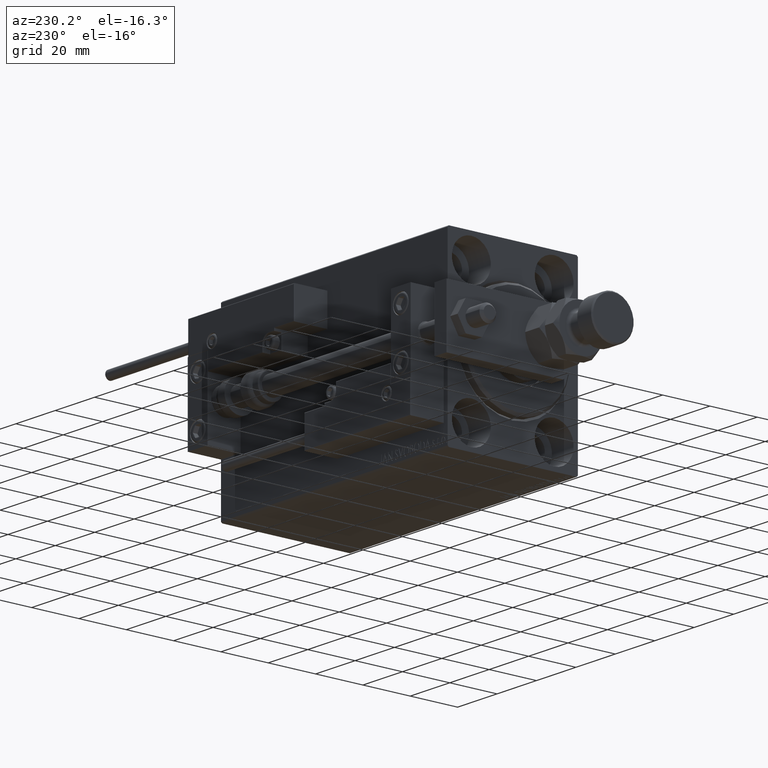
[diagram: clean part render]
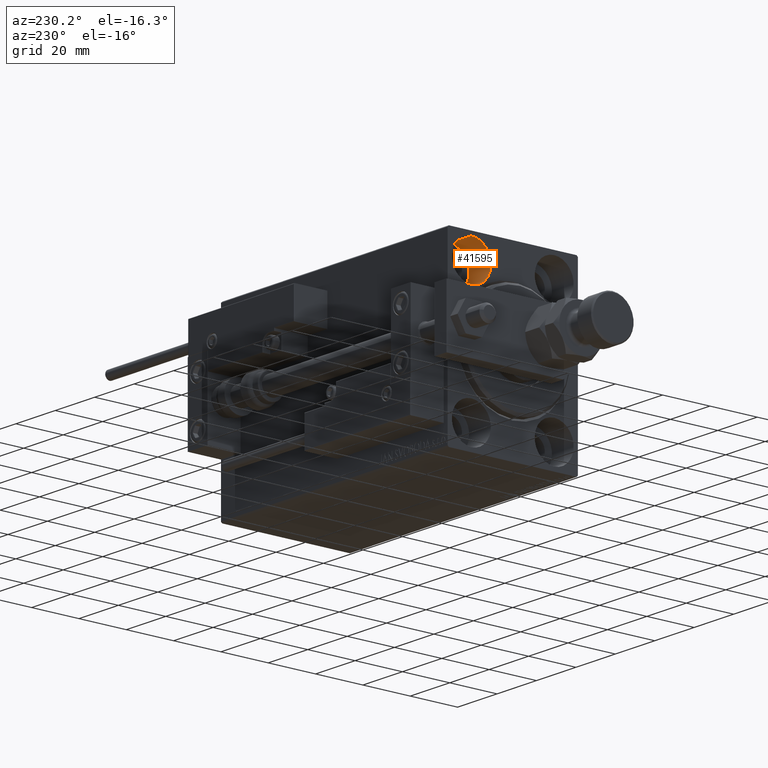
[diagram: same view with one face highlighted and labeled with its STEP entity id]
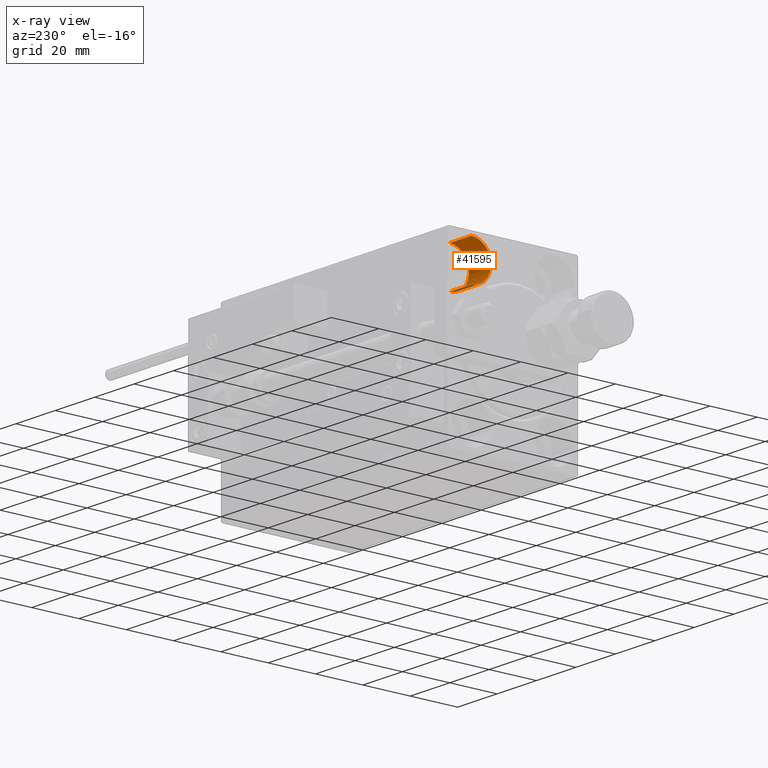
[diagram: x-ray of the same camera — body ghosted, the highlighted face saturated]
A machine part, auxiliary view. The second image highlights one B-rep face of the part: STEP entity #41595.
The next image is the same camera in x-ray: the body ghosted, the highlighted face saturated — about 5% of this face is hidden behind the body in this view.
In plain terms, the highlighted cylindrical surface (edge-blend (fillet) strip) has radius 8.25 mm, axis along (-1, -0, -0).
Its self-contained STEP definition (entity closure, byte-faithful):
#92 = VERTEX_POINT ( 'NONE', #14686 ) ;
#383 = DIRECTION ( 'NONE',  ( -1.000000000000000000, -0.000000000000000000, -0.000000000000000000 ) ) ;
#1646 = DIRECTION ( 'NONE',  ( -1.000000000000000000, 0.000000000000000000, 0.000000000000000000 ) ) ;
#5432 = CARTESIAN_POINT ( 'NONE',  ( 11.00000000000000000, 17.50000000000000355, 35.74999999999999289 ) ) ;
#9087 = DIRECTION ( 'NONE',  ( -1.000000000000000000, -0.000000000000000000, -0.000000000000000000 ) ) ;
#10274 = DIRECTION ( 'NONE',  ( -1.000000000000000000, 0.000000000000000000, 0.000000000000000000 ) ) ;
#10279 = AXIS2_PLACEMENT_3D ( 'NONE', #18625, #10274, #38683 ) ;
#11518 = LINE ( 'NONE', #5432, #23237 ) ;
#12307 = ORIENTED_EDGE ( 'NONE', *, *, #29003, .T. ) ;
#14686 = CARTESIAN_POINT ( 'NONE',  ( 11.00000000000000000, 17.50000000000000355, 19.25000000000000000 ) ) ;
#14955 = CARTESIAN_POINT ( 'NONE',  ( 11.00000000000000000, 17.50000000000000355, 19.25000000000000000 ) ) ;
#18625 = CARTESIAN_POINT ( 'NONE',  ( 0.000000000000000000, 17.50000000000000355, 27.49999999999999645 ) ) ;
#18822 = AXIS2_PLACEMENT_3D ( 'NONE', #36084, #383, #20701 ) ;
#20536 = CIRCLE ( 'NONE', #37151, 8.249999999999992895 ) ;
#20637 = EDGE_CURVE ( 'NONE', #42454, #20639, #11518, .T. ) ;
#20639 = VERTEX_POINT ( 'NONE', #44798 ) ;
#20701 = DIRECTION ( 'NONE',  ( 0.000000000000000000, 0.000000000000000000, 1.000000000000000000 ) ) ;
#23237 = VECTOR ( 'NONE', #9087, 1000.000000000000000 ) ;
#24094 = FACE_OUTER_BOUND ( 'NONE', #36890, .T. ) ;
#24486 = VECTOR ( 'NONE', #34238, 1000.000000000000000 ) ;
#27721 = ORIENTED_EDGE ( 'NONE', *, *, #20637, .F. ) ;
#28991 = EDGE_CURVE ( 'NONE', #36937, #20639, #41908, .T. ) ;
#29003 = EDGE_CURVE ( 'NONE', #92, #36937, #30604, .T. ) ;
#30604 = LINE ( 'NONE', #14955, #24486 ) ;
#33682 = CARTESIAN_POINT ( 'NONE',  ( 11.00000000000000000, 17.50000000000000355, 27.49999999999999645 ) ) ;
#34238 = DIRECTION ( 'NONE',  ( -1.000000000000000000, -0.000000000000000000, -0.000000000000000000 ) ) ;
#36084 = CARTESIAN_POINT ( 'NONE',  ( 11.00000000000000000, 17.50000000000000355, 27.49999999999999645 ) ) ;
#36890 = EDGE_LOOP ( 'NONE', ( #42058, #12307, #42784, #27721 ) ) ;
#36937 = VERTEX_POINT ( 'NONE', #44583 ) ;
#37151 = AXIS2_PLACEMENT_3D ( 'NONE', #33682, #1646, #49601 ) ;
#38683 = DIRECTION ( 'NONE',  ( 0.000000000000000000, 0.000000000000000000, 1.000000000000000000 ) ) ;
#39106 = CARTESIAN_POINT ( 'NONE',  ( 11.00000000000000000, 17.50000000000000355, 35.74999999999999289 ) ) ;
#41595 = ADVANCED_FACE ( 'NONE', ( #24094 ), #44657, .F. ) ;
#41908 = CIRCLE ( 'NONE', #10279, 8.249999999999992895 ) ;
#42058 = ORIENTED_EDGE ( 'NONE', *, *, #46090, .F. ) ;
#42454 = VERTEX_POINT ( 'NONE', #39106 ) ;
#42784 = ORIENTED_EDGE ( 'NONE', *, *, #28991, .T. ) ;
#44583 = CARTESIAN_POINT ( 'NONE',  ( 0.000000000000000000, 17.50000000000000355, 19.25000000000000000 ) ) ;
#44657 = CYLINDRICAL_SURFACE ( 'NONE', #18822, 8.249999999999992895 ) ;
#44798 = CARTESIAN_POINT ( 'NONE',  ( 0.000000000000000000, 17.50000000000000355, 35.74999999999999289 ) ) ;
#46090 = EDGE_CURVE ( 'NONE', #92, #42454, #20536, .T. ) ;
#49601 = DIRECTION ( 'NONE',  ( 0.000000000000000000, 0.000000000000000000, 1.000000000000000000 ) ) ;